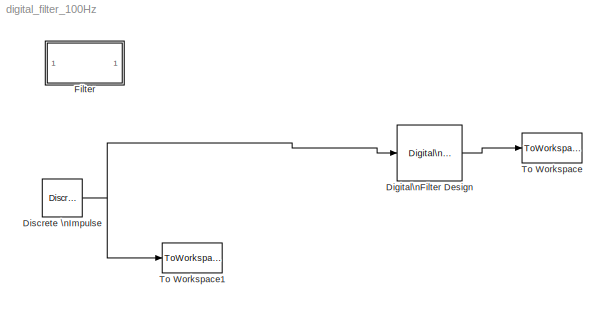
MODEL digital_filter_100Hz
KIND model
BLOCK [Reference] Digital\nFilter Design  REF=dsparch4/Digital\nFilter Design
  Ports = [1, 1]
  ShowPortLabels = on
  SourceBlock = dsparch4/Digital\nFilter Design
  UserData = DataTag0
  UserDataPersistent = on
  mwdsp_browser_bugfix_var = off
BLOCK [Reference] Discrete \nImpulse  REF=dspsrcs4/Discrete \nImpulse
  Delay = 0
  FrameSample = 1
  Ports = [0, 1]
  SampleTime = 1/20000
  SourceBlock = dspsrcs4/Discrete \nImpulse
  SourceType = Discrete Impulse
  additionalParams = off
  allowOverrides = on
  dataType = double
  fracBitsMode = Best precision
  isSigned = on
  numFracBits = 15
  udDataType = sfix(16)
  wordLen = 16
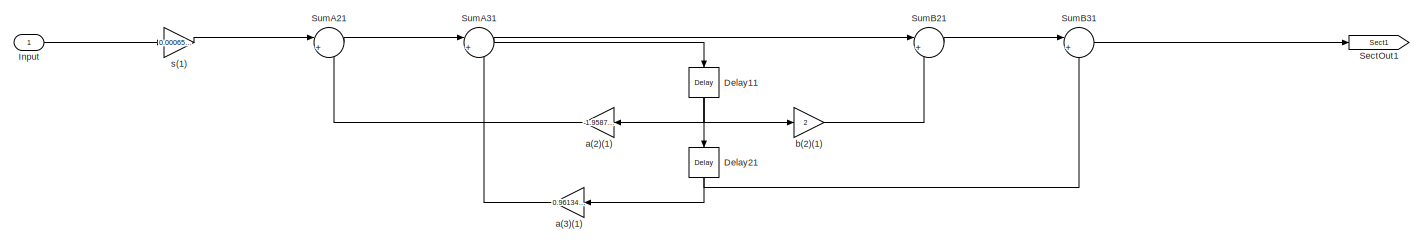
[diagram: Filter - part 1/2, left side, full height]
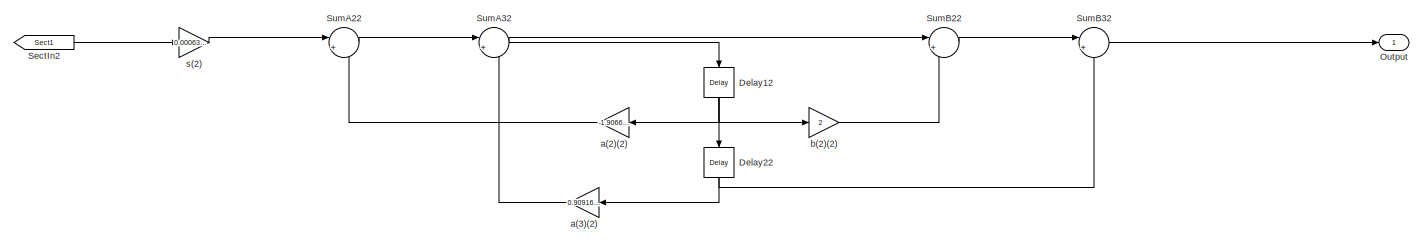
[diagram: Filter - part 2/2, right side, full height]
BLOCK [SubSystem] Filter
  ErrorFcn = dspFilterRealizedInBasicElemsAlgLoopErrFcnCallback
  MinAlgLoopOccurrences = off
  Ports = [1, 1]
  RTWSystemCode = Auto
  Tag = FilterWizardSubSystem
  TreatAsAtomicUnit = off
BLOCK [Reference] Filter/Delay11  REF=dspsigops/Delay
  Ports = [1, 1]
  SourceBlock = dspsigops/Delay
  SourceType = Delay
  delay = 1
  dif_ic_for_ch = off
  dif_ic_for_dly = off
  dly_unit = Samples
  ic = 0
  ic_detail = off
  reset_popup = None
BLOCK [Reference] Filter/Delay12  REF=dspsigops/Delay
  Ports = [1, 1]
  SourceBlock = dspsigops/Delay
  SourceType = Delay
  delay = 1
  dif_ic_for_ch = off
  dif_ic_for_dly = off
  dly_unit = Samples
  ic = 0
  ic_detail = off
  reset_popup = None
BLOCK [Reference] Filter/Delay21  REF=dspsigops/Delay
  Ports = [1, 1]
  SourceBlock = dspsigops/Delay
  SourceType = Delay
  delay = 1
  dif_ic_for_ch = off
  dif_ic_for_dly = off
  dly_unit = Samples
  ic = 0
  ic_detail = off
  reset_popup = None
BLOCK [Reference] Filter/Delay22  REF=dspsigops/Delay
  Ports = [1, 1]
  SourceBlock = dspsigops/Delay
  SourceType = Delay
  delay = 1
  dif_ic_for_ch = off
  dif_ic_for_dly = off
  dly_unit = Samples
  ic = 0
  ic_detail = off
  reset_popup = None
BLOCK [Inport] Filter/Input
  IconDisplay = Port number
  LatchInput = off
  Port = 1
BLOCK [Outport] Filter/Output
  IconDisplay = Port number
BLOCK [From] Filter/SectIn2
  GotoTag = Sect1
BLOCK [Goto] Filter/SectOut1
  GotoTag = Sect1
  TagVisibility = local
BLOCK [Sum] Filter/SumA21
  IconShape = round
  Inputs = |+-
  Ports = [2, 1]
BLOCK [Sum] Filter/SumA22
  IconShape = round
  Inputs = |+-
  Ports = [2, 1]
BLOCK [Sum] Filter/SumA31
  IconShape = round
  Inputs = |+-
  Ports = [2, 1]
BLOCK [Sum] Filter/SumA32
  IconShape = round
  Inputs = |+-
  Ports = [2, 1]
BLOCK [Sum] Filter/SumB21
  IconShape = round
  Inputs = |++
  Ports = [2, 1]
BLOCK [Sum] Filter/SumB22
  IconShape = round
  Inputs = |++
  Ports = [2, 1]
BLOCK [Sum] Filter/SumB31
  IconShape = round
  Inputs = |++
  Ports = [2, 1]
BLOCK [Sum] Filter/SumB32
  IconShape = round
  Inputs = |++
  Ports = [2, 1]
BLOCK [Gain] Filter/a(2)(1)
  Gain = -1.9587428340882587
BLOCK [Gain] Filter/a(2)(2)
  Gain = -1.9066292518523014
BLOCK [Gain] Filter/a(3)(1)
  Gain = 0.96134553442399129
BLOCK [Gain] Filter/a(3)(2)
  Gain = 0.90916270571237567
BLOCK [Gain] Filter/b(2)(1)
  Gain = 2
BLOCK [Gain] Filter/b(2)(2)
  Gain = 2
BLOCK [Gain] Filter/s(1)
  Gain = 0.00065067508393319923
BLOCK [Gain] Filter/s(2)
  Gain = 0.00063336346501859835
BLOCK [ToWorkspace] To Workspace
  MaxDataPoints = inf
  SampleTime = -1
  SaveFormat = Array
  VariableName = simout
BLOCK [ToWorkspace] To Workspace1
  MaxDataPoints = inf
  SampleTime = -1
  SaveFormat = Array
  VariableName = simout1
LINE Digital\nFilter Design:1 -> To Workspace:1
NET Discrete \nImpulse:1 -> Digital\nFilter Design:1, To Workspace1:1
NET Filter/Delay11:1 -> Filter/Delay21:1, Filter/a(2)(1):1, Filter/b(2)(1):1
NET Filter/Delay12:1 -> Filter/Delay22:1, Filter/a(2)(2):1, Filter/b(2)(2):1
NET Filter/Delay21:1 -> Filter/SumB31:2, Filter/a(3)(1):1
NET Filter/Delay22:1 -> Filter/SumB32:2, Filter/a(3)(2):1
LINE Filter/Input:1 -> Filter/s(1):1
LINE Filter/SectIn2:1 -> Filter/s(2):1
LINE Filter/SumA21:1 -> Filter/SumA31:1
LINE Filter/SumA22:1 -> Filter/SumA32:1
NET Filter/SumA31:1 -> Filter/Delay11:1, Filter/SumB21:1
NET Filter/SumA32:1 -> Filter/Delay12:1, Filter/SumB22:1
LINE Filter/SumB21:1 -> Filter/SumB31:1
LINE Filter/SumB22:1 -> Filter/SumB32:1
LINE Filter/SumB31:1 -> Filter/SectOut1:1
LINE Filter/SumB32:1 -> Filter/Output:1
LINE Filter/a(2)(1):1 -> Filter/SumA21:2
LINE Filter/a(2)(2):1 -> Filter/SumA22:2
LINE Filter/a(3)(1):1 -> Filter/SumA31:2
LINE Filter/a(3)(2):1 -> Filter/SumA32:2
LINE Filter/b(2)(1):1 -> Filter/SumB21:2
LINE Filter/b(2)(2):1 -> Filter/SumB22:2
LINE Filter/s(1):1 -> Filter/SumA21:1
LINE Filter/s(2):1 -> Filter/SumA22:1
note: NET lines group one-source signal fan-out (src -> all destinations, sorted); 1:1 wires keep LINE
